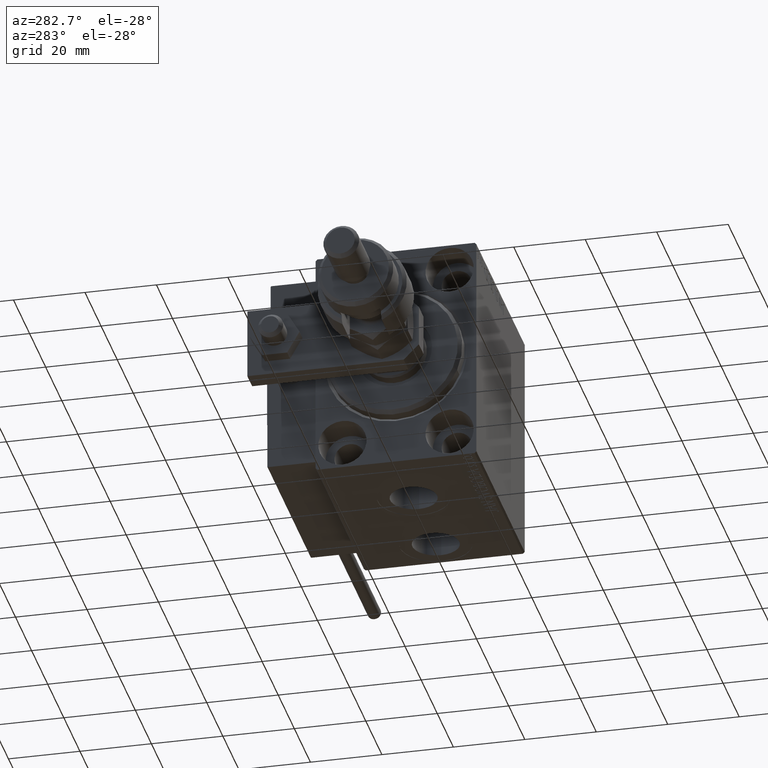
[diagram: clean part render]
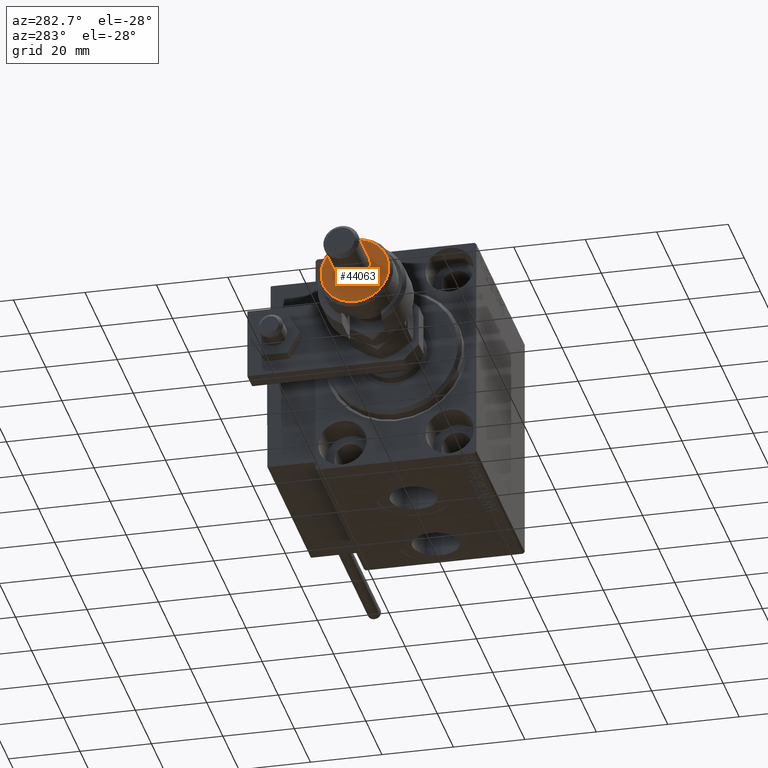
[diagram: same view with one face highlighted and labeled with its STEP entity id]
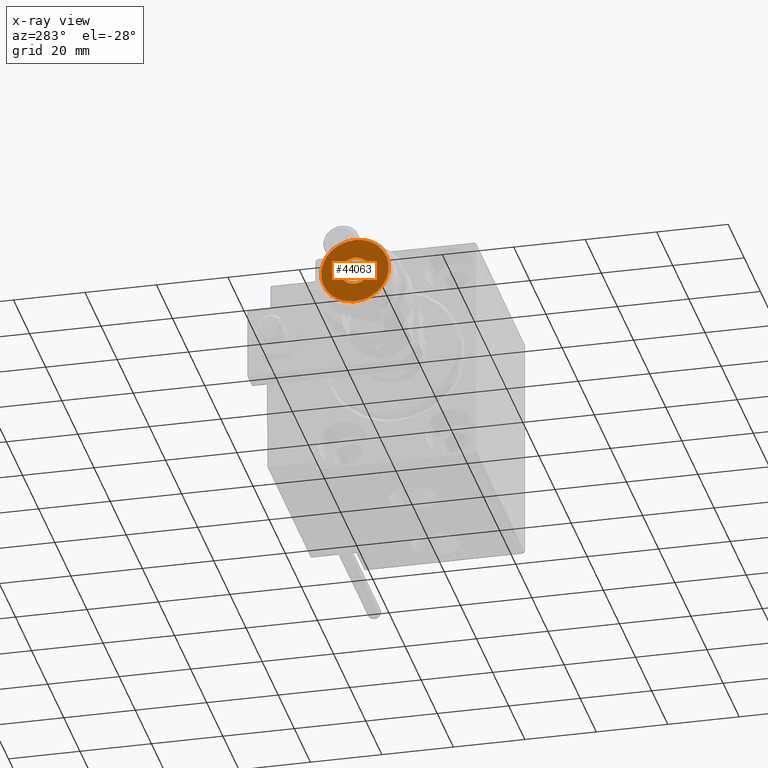
[diagram: x-ray of the same camera — body ghosted, the highlighted face saturated]
A machine part, auxiliary view. The second image highlights one B-rep face of the part: STEP entity #44063.
The next image is the same camera in x-ray: the body ghosted, the highlighted face saturated — about 0% of this face is hidden behind the body in this view.
In plain terms, the highlighted planar face has unit normal (-1, 0, 0).
Its self-contained STEP definition (entity closure, byte-faithful):
#14 = AXIS2_PLACEMENT_3D ( 'NONE', #50561, #50288, #4633 ) ;
#330 = DIRECTION ( 'NONE',  ( 1.000000000000000000, 0.000000000000000000, -0.000000000000000000 ) ) ;
#380 = EDGE_LOOP ( 'NONE', ( #52756, #39140 ) ) ;
#4633 = DIRECTION ( 'NONE',  ( 1.000000000000000000, 0.000000000000000000, 0.000000000000000000 ) ) ;
#7913 = ORIENTED_EDGE ( 'NONE', *, *, #34818, .F. ) ;
#8084 = AXIS2_PLACEMENT_3D ( 'NONE', #50097, #20383, #330 ) ;
#12812 = CARTESIAN_POINT ( 'NONE',  ( 0.000000000000000000, 0.000000000000000000, 19.00000000000000000 ) ) ;
#13926 = EDGE_LOOP ( 'NONE', ( #7913, #35286 ) ) ;
#17355 = PLANE ( 'NONE',  #8084 ) ;
#19232 = EDGE_CURVE ( 'NONE', #20336, #23245, #34148, .T. ) ;
#20336 = VERTEX_POINT ( 'NONE', #29588 ) ;
#20383 = DIRECTION ( 'NONE',  ( 0.000000000000000000, 0.000000000000000000, 1.000000000000000000 ) ) ;
#21205 = FACE_OUTER_BOUND ( 'NONE', #380, .T. ) ;
#21494 = EDGE_CURVE ( 'NONE', #35530, #52713, #28986, .T. ) ;
#22744 = AXIS2_PLACEMENT_3D ( 'NONE', #39095, #43759, #35225 ) ;
#23245 = VERTEX_POINT ( 'NONE', #34733 ) ;
#25147 = CARTESIAN_POINT ( 'NONE',  ( 0.000000000000000000, 0.000000000000000000, 19.00000000000000000 ) ) ;
#26282 = AXIS2_PLACEMENT_3D ( 'NONE', #12812, #33426, #38089 ) ;
#28986 = CIRCLE ( 'NONE', #38669, 9.500000000000001776 ) ;
#29588 = CARTESIAN_POINT ( 'NONE',  ( 4.000000000000000000, 4.898587196589412829E-16, 19.00000000000000000 ) ) ;
#33426 = DIRECTION ( 'NONE',  ( 0.000000000000000000, 0.000000000000000000, 1.000000000000000000 ) ) ;
#33911 = DIRECTION ( 'NONE',  ( 1.000000000000000000, 0.000000000000000000, 0.000000000000000000 ) ) ;
#34148 = CIRCLE ( 'NONE', #26282, 4.000000000000000000 ) ;
#34159 = CIRCLE ( 'NONE', #22744, 4.000000000000000000 ) ;
#34733 = CARTESIAN_POINT ( 'NONE',  ( -4.000000000000000000, 0.000000000000000000, 19.00000000000000000 ) ) ;
#34818 = EDGE_CURVE ( 'NONE', #23245, #20336, #34159, .T. ) ;
#35225 = DIRECTION ( 'NONE',  ( 1.000000000000000000, 0.000000000000000000, 0.000000000000000000 ) ) ;
#35286 = ORIENTED_EDGE ( 'NONE', *, *, #19232, .F. ) ;
#35530 = VERTEX_POINT ( 'NONE', #39372 ) ;
#37487 = DIRECTION ( 'NONE',  ( 0.000000000000000000, 0.000000000000000000, 1.000000000000000000 ) ) ;
#38089 = DIRECTION ( 'NONE',  ( 1.000000000000000000, 0.000000000000000000, 0.000000000000000000 ) ) ;
#38640 = CIRCLE ( 'NONE', #14, 9.500000000000001776 ) ;
#38669 = AXIS2_PLACEMENT_3D ( 'NONE', #25147, #37487, #33911 ) ;
#39095 = CARTESIAN_POINT ( 'NONE',  ( 0.000000000000000000, 0.000000000000000000, 19.00000000000000000 ) ) ;
#39140 = ORIENTED_EDGE ( 'NONE', *, *, #21494, .T. ) ;
#39372 = CARTESIAN_POINT ( 'NONE',  ( 9.500000000000001776, 1.224646799147353256E-15, 19.00000000000000000 ) ) ;
#39466 = EDGE_CURVE ( 'NONE', #52713, #35530, #38640, .T. ) ;
#41542 = FACE_BOUND ( 'NONE', #13926, .T. ) ;
#43759 = DIRECTION ( 'NONE',  ( 0.000000000000000000, 0.000000000000000000, 1.000000000000000000 ) ) ;
#44063 = ADVANCED_FACE ( 'NONE', ( #21205, #41542 ), #17355, .T. ) ;
#48818 = CARTESIAN_POINT ( 'NONE',  ( -9.500000000000001776, 0.000000000000000000, 19.00000000000000000 ) ) ;
#50097 = CARTESIAN_POINT ( 'NONE',  ( 0.000000000000000000, 0.000000000000000000, 19.00000000000000000 ) ) ;
#50288 = DIRECTION ( 'NONE',  ( 0.000000000000000000, 0.000000000000000000, 1.000000000000000000 ) ) ;
#50561 = CARTESIAN_POINT ( 'NONE',  ( 0.000000000000000000, 0.000000000000000000, 19.00000000000000000 ) ) ;
#52713 = VERTEX_POINT ( 'NONE', #48818 ) ;
#52756 = ORIENTED_EDGE ( 'NONE', *, *, #39466, .T. ) ;